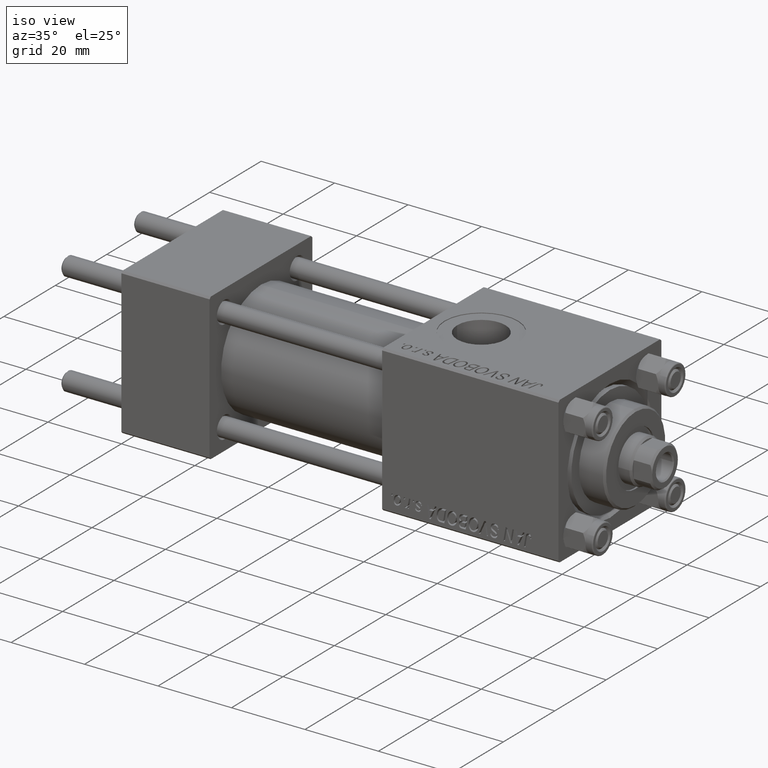
[diagram: clean part render]
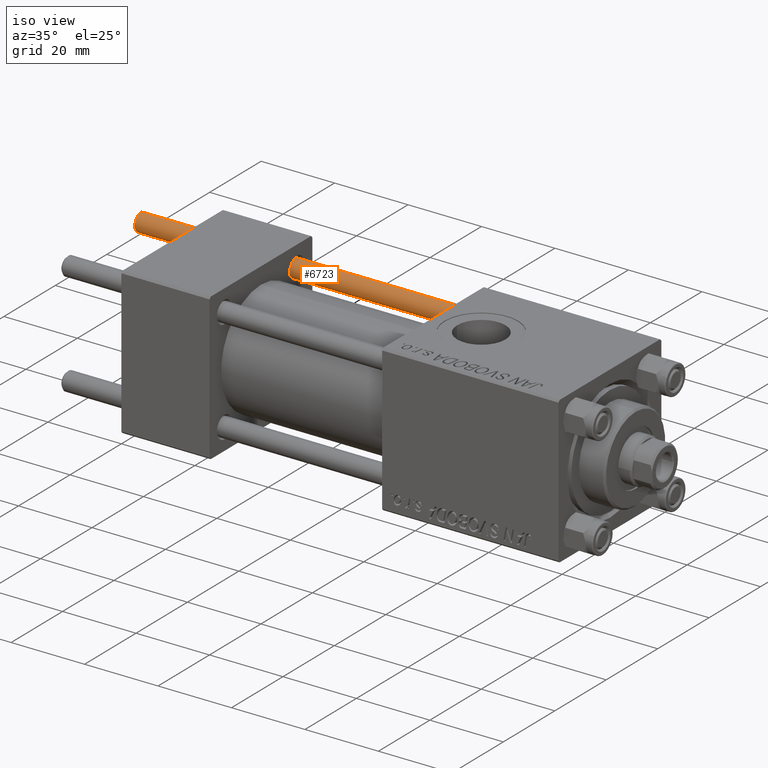
[diagram: same view with one face highlighted and labeled with its STEP entity id]
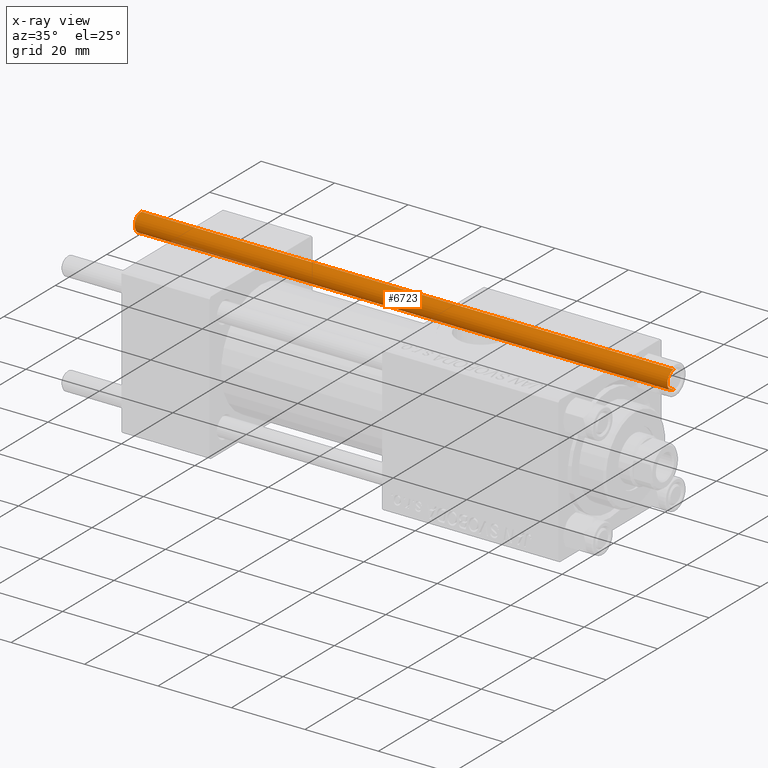
[diagram: x-ray of the same camera — body ghosted, the highlighted face saturated]
A machine part, iso view. The second image highlights one B-rep face of the part: STEP entity #6723.
The next image is the same camera in x-ray: the body ghosted, the highlighted face saturated — about 2% of this face is hidden behind the body in this view.
In plain terms, the highlighted cylindrical surface (edge-blend (fillet) strip) has radius 2.5 mm, axis along (-1, -0, -0).
Its self-contained STEP definition (entity closure, byte-faithful):
#3679 = CARTESIAN_POINT ( 'NONE',  ( -2.500000000000000000, 0.000000000000000000, 0.5000000000000559552 ) ) ;
#5718 = CARTESIAN_POINT ( 'NONE',  ( 0.000000000000000000, 0.000000000000000000, 146.0000000000000000 ) ) ;
#6649 = ORIENTED_EDGE ( 'NONE', *, *, #19610, .T. ) ;
#6723 = ADVANCED_FACE ( 'NONE', ( #21084 ), #43488, .T. ) ;
#7788 = VERTEX_POINT ( 'NONE', #45475 ) ;
#8998 = DIRECTION ( 'NONE',  ( -1.000000000000000000, 0.000000000000000000, 0.000000000000000000 ) ) ;
#9043 = ORIENTED_EDGE ( 'NONE', *, *, #22639, .F. ) ;
#9961 = ORIENTED_EDGE ( 'NONE', *, *, #40836, .T. ) ;
#10320 = VERTEX_POINT ( 'NONE', #3679 ) ;
#10374 = VECTOR ( 'NONE', #15752, 1000.000000000000000 ) ;
#12731 = CARTESIAN_POINT ( 'NONE',  ( -2.500000000000000000, 0.000000000000000000, 146.0000000000000000 ) ) ;
#13503 = DIRECTION ( 'NONE',  ( 1.000000000000000000, 0.000000000000000000, 0.000000000000000000 ) ) ;
#15752 = DIRECTION ( 'NONE',  ( -0.000000000000000000, -0.000000000000000000, -1.000000000000000000 ) ) ;
#15856 = DIRECTION ( 'NONE',  ( -0.000000000000000000, -0.000000000000000000, 1.000000000000000000 ) ) ;
#16763 = EDGE_LOOP ( 'NONE', ( #9043, #18656, #6649, #9961 ) ) ;
#17711 = DIRECTION ( 'NONE',  ( 0.000000000000000000, 0.000000000000000000, -1.000000000000000000 ) ) ;
#18556 = CARTESIAN_POINT ( 'NONE',  ( -2.500000000000000000, 0.000000000000000000, 145.5000000000000284 ) ) ;
#18656 = ORIENTED_EDGE ( 'NONE', *, *, #48970, .T. ) ;
#19547 = LINE ( 'NONE', #12731, #41747 ) ;
#19610 = EDGE_CURVE ( 'NONE', #27627, #10320, #19547, .T. ) ;
#21059 = CARTESIAN_POINT ( 'NONE',  ( 0.000000000000000000, 0.000000000000000000, 0.5000000000000559552 ) ) ;
#21084 = FACE_OUTER_BOUND ( 'NONE', #16763, .T. ) ;
#21979 = VERTEX_POINT ( 'NONE', #41641 ) ;
#22311 = AXIS2_PLACEMENT_3D ( 'NONE', #36829, #17711, #23561 ) ;
#22639 = EDGE_CURVE ( 'NONE', #21979, #7788, #30849, .T. ) ;
#23561 = DIRECTION ( 'NONE',  ( 1.000000000000000000, 0.000000000000000000, 0.000000000000000000 ) ) ;
#25104 = DIRECTION ( 'NONE',  ( -0.000000000000000000, -0.000000000000000000, -1.000000000000000000 ) ) ;
#27627 = VERTEX_POINT ( 'NONE', #18556 ) ;
#30849 = LINE ( 'NONE', #38650, #10374 ) ;
#33225 = AXIS2_PLACEMENT_3D ( 'NONE', #21059, #15856, #13503 ) ;
#34002 = CIRCLE ( 'NONE', #33225, 2.500000000000000000 ) ;
#36829 = CARTESIAN_POINT ( 'NONE',  ( 0.000000000000000000, 0.000000000000000000, 145.5000000000000284 ) ) ;
#38650 = CARTESIAN_POINT ( 'NONE',  ( 2.500000000000000000, 3.061616997868383141E-16, 146.0000000000000000 ) ) ;
#40836 = EDGE_CURVE ( 'NONE', #10320, #7788, #34002, .T. ) ;
#41641 = CARTESIAN_POINT ( 'NONE',  ( 2.500000000000000000, 3.061616997868383141E-16, 145.5000000000000284 ) ) ;
#41747 = VECTOR ( 'NONE', #46973, 1000.000000000000000 ) ;
#42289 = AXIS2_PLACEMENT_3D ( 'NONE', #5718, #25104, #8998 ) ;
#43488 = CYLINDRICAL_SURFACE ( 'NONE', #42289, 2.500000000000000000 ) ;
#44015 = CIRCLE ( 'NONE', #22311, 2.500000000000000000 ) ;
#45475 = CARTESIAN_POINT ( 'NONE',  ( 2.500000000000000000, 3.061616997868383141E-16, 0.5000000000000559552 ) ) ;
#46973 = DIRECTION ( 'NONE',  ( -0.000000000000000000, -0.000000000000000000, -1.000000000000000000 ) ) ;
#48970 = EDGE_CURVE ( 'NONE', #21979, #27627, #44015, .T. ) ;